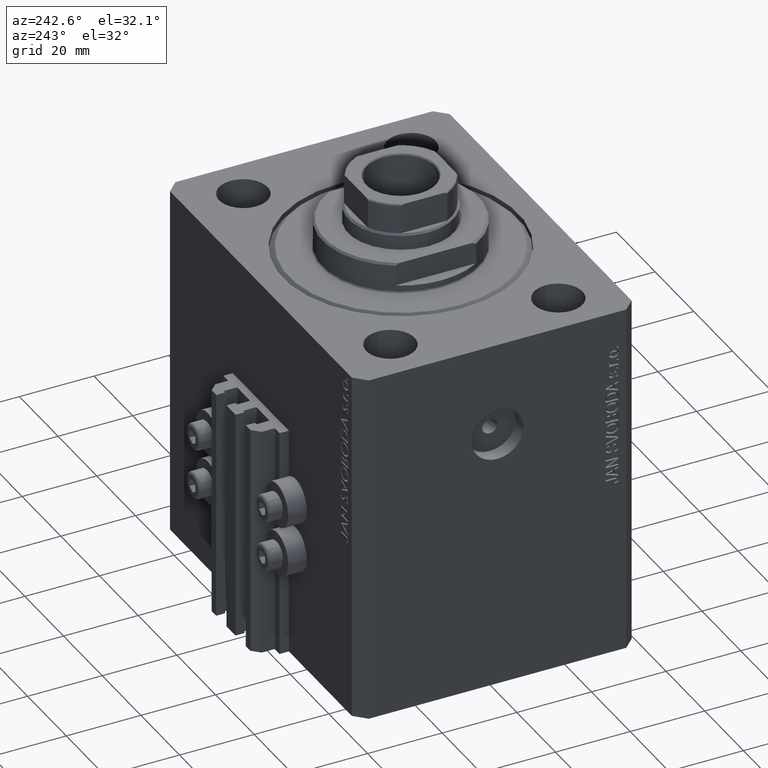
[diagram: clean part render]
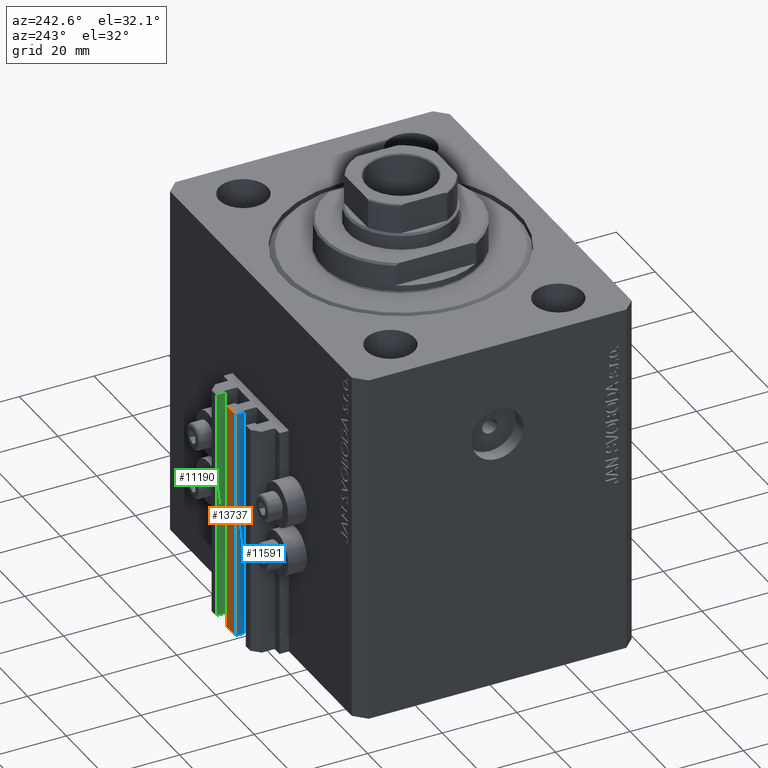
[diagram: same view with three faces highlighted in distinct colors, each labeled with its STEP entity id]
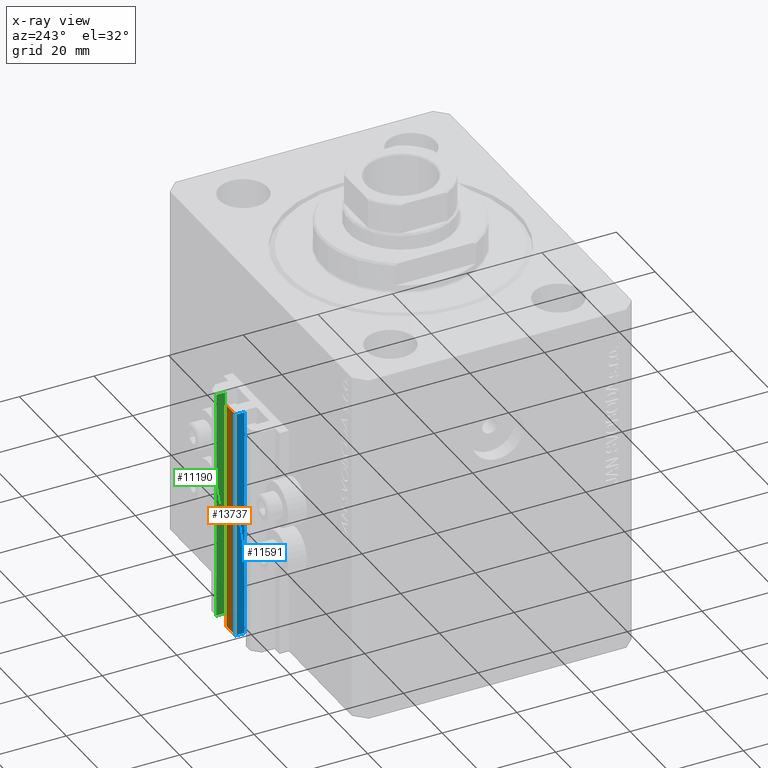
[diagram: x-ray of the same camera — body ghosted, the three highlighted faces saturated]
A machine part, auxiliary view with three faces highlighted in distinct colors.
The next image is the same camera in x-ray (body ghosted, the three faces saturated) — at least one of them is partly hidden behind the body in this view.
Their STEP definitions:

[orange] entity #13737 — the highlighted planar face has unit normal (0, -1, 0).
#121 = VECTOR ( 'NONE', #41443, 1000.000000000000000 ) ;
#492 = CARTESIAN_POINT ( 'NONE',  ( 2.349999999999999645, 45.50000000000000711, -95.00000000000000000 ) ) ;
#788 = VERTEX_POINT ( 'NONE', #42410 ) ;
#1627 = DIRECTION ( 'NONE',  ( 1.000000000000000000, 0.000000000000000000, 0.000000000000000000 ) ) ;
#2360 = FACE_OUTER_BOUND ( 'NONE', #14128, .T. ) ;
#3077 = CARTESIAN_POINT ( 'NONE',  ( -2.350000000000003642, 45.50000000000000711, -95.00000000000000000 ) ) ;
#4330 = VECTOR ( 'NONE', #27275, 1000.000000000000000 ) ;
#5211 = VERTEX_POINT ( 'NONE', #31673 ) ;
#6815 = ORIENTED_EDGE ( 'NONE', *, *, #15473, .T. ) ;
#10040 = VERTEX_POINT ( 'NONE', #10659 ) ;
#10659 = CARTESIAN_POINT ( 'NONE',  ( -2.350000000000003642, 45.50000000000000711, -95.00000000000000000 ) ) ;
#12258 = LINE ( 'NONE', #26834, #121 ) ;
#12591 = EDGE_CURVE ( 'NONE', #10040, #20993, #23651, .T. ) ;
#13599 = CARTESIAN_POINT ( 'NONE',  ( -2.350000000000003642, 45.50000000000000711, -33.00000000000000000 ) ) ;
#13737 = ADVANCED_FACE ( 'NONE', ( #2360 ), #35385, .F. ) ;
#14128 = EDGE_LOOP ( 'NONE', ( #32636, #20941, #33839, #6815 ) ) ;
#15473 = EDGE_CURVE ( 'NONE', #10040, #788, #19407, .T. ) ;
#17682 = DIRECTION ( 'NONE',  ( 0.000000000000000000, -0.000000000000000000, -1.000000000000000000 ) ) ;
#19407 = LINE ( 'NONE', #19626, #4330 ) ;
#19626 = CARTESIAN_POINT ( 'NONE',  ( -2.350000000000003642, 45.50000000000000711, -95.00000000000000000 ) ) ;
#20524 = LINE ( 'NONE', #13599, #39050 ) ;
#20941 = ORIENTED_EDGE ( 'NONE', *, *, #35775, .F. ) ;
#20993 = VERTEX_POINT ( 'NONE', #492 ) ;
#21433 = VECTOR ( 'NONE', #45205, 1000.000000000000000 ) ;
#23651 = LINE ( 'NONE', #30367, #21433 ) ;
#26834 = CARTESIAN_POINT ( 'NONE',  ( 2.349999999999999645, 45.50000000000000711, -95.00000000000000000 ) ) ;
#27275 = DIRECTION ( 'NONE',  ( 0.000000000000000000, 0.000000000000000000, 1.000000000000000000 ) ) ;
#28200 = DIRECTION ( 'NONE',  ( 0.000000000000000000, -1.000000000000000000, 0.000000000000000000 ) ) ;
#30367 = CARTESIAN_POINT ( 'NONE',  ( -2.350000000000003642, 45.50000000000000711, -95.00000000000000000 ) ) ;
#31673 = CARTESIAN_POINT ( 'NONE',  ( 2.349999999999999645, 45.50000000000000711, -33.00000000000000000 ) ) ;
#32636 = ORIENTED_EDGE ( 'NONE', *, *, #33977, .T. ) ;
#33839 = ORIENTED_EDGE ( 'NONE', *, *, #12591, .F. ) ;
#33977 = EDGE_CURVE ( 'NONE', #788, #5211, #20524, .T. ) ;
#35385 = PLANE ( 'NONE',  #40221 ) ;
#35775 = EDGE_CURVE ( 'NONE', #20993, #5211, #12258, .T. ) ;
#39050 = VECTOR ( 'NONE', #1627, 1000.000000000000000 ) ;
#40221 = AXIS2_PLACEMENT_3D ( 'NONE', #3077, #28200, #17682 ) ;
#41443 = DIRECTION ( 'NONE',  ( 0.000000000000000000, 0.000000000000000000, 1.000000000000000000 ) ) ;
#42410 = CARTESIAN_POINT ( 'NONE',  ( -2.350000000000003642, 45.50000000000000711, -33.00000000000000000 ) ) ;
#45205 = DIRECTION ( 'NONE',  ( 1.000000000000000000, 0.000000000000000000, 0.000000000000000000 ) ) ;

[blue] entity #11591 — the highlighted planar face has unit normal (-1, -0, 0).
#788 = VERTEX_POINT ( 'NONE', #42410 ) ;
#2362 = CARTESIAN_POINT ( 'NONE',  ( -2.350000000000003642, 45.50000000000000711, -33.00000000000000000 ) ) ;
#4330 = VECTOR ( 'NONE', #27275, 1000.000000000000000 ) ;
#4855 = ORIENTED_EDGE ( 'NONE', *, *, #4920, .F. ) ;
#4920 = EDGE_CURVE ( 'NONE', #788, #45655, #38261, .T. ) ;
#6316 = CARTESIAN_POINT ( 'NONE',  ( -2.350000000000003197, 43.10000000000000853, -95.00000000000000000 ) ) ;
#10040 = VERTEX_POINT ( 'NONE', #10659 ) ;
#10509 = ORIENTED_EDGE ( 'NONE', *, *, #43942, .T. ) ;
#10630 = DIRECTION ( 'NONE',  ( 0.000000000000000000, 0.000000000000000000, 1.000000000000000000 ) ) ;
#10659 = CARTESIAN_POINT ( 'NONE',  ( -2.350000000000003642, 45.50000000000000711, -95.00000000000000000 ) ) ;
#11334 = DIRECTION ( 'NONE',  ( 1.807003620809174632E-16, -1.000000000000000000, 0.000000000000000000 ) ) ;
#11464 = AXIS2_PLACEMENT_3D ( 'NONE', #46093, #46318, #30770 ) ;
#11577 = LINE ( 'NONE', #44116, #12887 ) ;
#11591 = ADVANCED_FACE ( 'NONE', ( #23353 ), #24062, .T. ) ;
#12414 = CARTESIAN_POINT ( 'NONE',  ( -2.350000000000003197, 43.10000000000000853, -33.00000000000000000 ) ) ;
#12887 = VECTOR ( 'NONE', #11334, 1000.000000000000000 ) ;
#15036 = VERTEX_POINT ( 'NONE', #20677 ) ;
#15473 = EDGE_CURVE ( 'NONE', #10040, #788, #19407, .T. ) ;
#16164 = VECTOR ( 'NONE', #16717, 1000.000000000000000 ) ;
#16717 = DIRECTION ( 'NONE',  ( 1.807003620809174632E-16, -1.000000000000000000, 0.000000000000000000 ) ) ;
#17961 = VECTOR ( 'NONE', #10630, 1000.000000000000000 ) ;
#19407 = LINE ( 'NONE', #19626, #4330 ) ;
#19626 = CARTESIAN_POINT ( 'NONE',  ( -2.350000000000003642, 45.50000000000000711, -95.00000000000000000 ) ) ;
#20387 = ORIENTED_EDGE ( 'NONE', *, *, #15473, .F. ) ;
#20677 = CARTESIAN_POINT ( 'NONE',  ( -2.350000000000003197, 43.10000000000000853, -95.00000000000000000 ) ) ;
#23353 = FACE_OUTER_BOUND ( 'NONE', #43267, .T. ) ;
#24062 = PLANE ( 'NONE',  #11464 ) ;
#24461 = EDGE_CURVE ( 'NONE', #10040, #15036, #11577, .T. ) ;
#27275 = DIRECTION ( 'NONE',  ( 0.000000000000000000, 0.000000000000000000, 1.000000000000000000 ) ) ;
#30770 = DIRECTION ( 'NONE',  ( 1.807003620809174632E-16, -1.000000000000000000, 0.000000000000000000 ) ) ;
#37050 = ORIENTED_EDGE ( 'NONE', *, *, #24461, .T. ) ;
#38261 = LINE ( 'NONE', #2362, #16164 ) ;
#42410 = CARTESIAN_POINT ( 'NONE',  ( -2.350000000000003642, 45.50000000000000711, -33.00000000000000000 ) ) ;
#43173 = LINE ( 'NONE', #6316, #17961 ) ;
#43267 = EDGE_LOOP ( 'NONE', ( #4855, #20387, #37050, #10509 ) ) ;
#43942 = EDGE_CURVE ( 'NONE', #15036, #45655, #43173, .T. ) ;
#44116 = CARTESIAN_POINT ( 'NONE',  ( -2.350000000000003642, 45.50000000000000711, -95.00000000000000000 ) ) ;
#45655 = VERTEX_POINT ( 'NONE', #12414 ) ;
#46093 = CARTESIAN_POINT ( 'NONE',  ( -2.350000000000003642, 45.50000000000000711, -95.00000000000000000 ) ) ;
#46318 = DIRECTION ( 'NONE',  ( -1.000000000000000000, -1.807003620809174632E-16, 0.000000000000000000 ) ) ;

[green] entity #11190 — the highlighted planar face has unit normal (-1, 0, 0).
#1012 = DIRECTION ( 'NONE',  ( 0.000000000000000000, -1.000000000000000000, 0.000000000000000000 ) ) ;
#1490 = AXIS2_PLACEMENT_3D ( 'NONE', #39785, #3426, #17538 ) ;
#2302 = ORIENTED_EDGE ( 'NONE', *, *, #23494, .T. ) ;
#2938 = FACE_OUTER_BOUND ( 'NONE', #12404, .T. ) ;
#3029 = VECTOR ( 'NONE', #3168, 1000.000000000000000 ) ;
#3168 = DIRECTION ( 'NONE',  ( 0.000000000000000000, 0.000000000000000000, 1.000000000000000000 ) ) ;
#3426 = DIRECTION ( 'NONE',  ( -1.000000000000000000, 0.000000000000000000, 0.000000000000000000 ) ) ;
#5110 = CARTESIAN_POINT ( 'NONE',  ( 7.649999999999998579, 45.50000000000002842, -33.00000000000000000 ) ) ;
#5903 = LINE ( 'NONE', #46837, #21954 ) ;
#6116 = LINE ( 'NONE', #38184, #14627 ) ;
#6992 = ORIENTED_EDGE ( 'NONE', *, *, #25391, .F. ) ;
#7010 = LINE ( 'NONE', #42646, #3029 ) ;
#10610 = PLANE ( 'NONE',  #1490 ) ;
#11190 = ADVANCED_FACE ( 'NONE', ( #2938 ), #10610, .T. ) ;
#12404 = EDGE_LOOP ( 'NONE', ( #39509, #6992, #2302, #43135 ) ) ;
#14627 = VECTOR ( 'NONE', #28120, 1000.000000000000000 ) ;
#17538 = DIRECTION ( 'NONE',  ( 0.000000000000000000, 0.000000000000000000, 1.000000000000000000 ) ) ;
#20353 = EDGE_CURVE ( 'NONE', #35944, #35779, #5903, .T. ) ;
#21465 = DIRECTION ( 'NONE',  ( 0.000000000000000000, 0.000000000000000000, 1.000000000000000000 ) ) ;
#21954 = VECTOR ( 'NONE', #21465, 1000.000000000000000 ) ;
#23494 = EDGE_CURVE ( 'NONE', #39305, #35944, #44810, .T. ) ;
#25391 = EDGE_CURVE ( 'NONE', #39305, #46948, #7010, .T. ) ;
#27238 = CARTESIAN_POINT ( 'NONE',  ( 7.649999999999998579, 43.10000000000002984, -95.00000000000000000 ) ) ;
#28120 = DIRECTION ( 'NONE',  ( 0.000000000000000000, -1.000000000000000000, 0.000000000000000000 ) ) ;
#30437 = CARTESIAN_POINT ( 'NONE',  ( 7.649999999999998579, 45.50000000000002842, -95.00000000000000000 ) ) ;
#30666 = CARTESIAN_POINT ( 'NONE',  ( 7.649999999999998579, 43.10000000000002984, -33.00000000000000000 ) ) ;
#34122 = EDGE_CURVE ( 'NONE', #46948, #35779, #6116, .T. ) ;
#35779 = VERTEX_POINT ( 'NONE', #30666 ) ;
#35944 = VERTEX_POINT ( 'NONE', #27238 ) ;
#38184 = CARTESIAN_POINT ( 'NONE',  ( 7.649999999999998579, 45.50000000000002842, -33.00000000000000000 ) ) ;
#39305 = VERTEX_POINT ( 'NONE', #39790 ) ;
#39509 = ORIENTED_EDGE ( 'NONE', *, *, #34122, .F. ) ;
#39785 = CARTESIAN_POINT ( 'NONE',  ( 7.649999999999998579, 45.50000000000002842, -95.00000000000000000 ) ) ;
#39790 = CARTESIAN_POINT ( 'NONE',  ( 7.649999999999998579, 45.50000000000002842, -95.00000000000000000 ) ) ;
#40387 = VECTOR ( 'NONE', #1012, 1000.000000000000000 ) ;
#42646 = CARTESIAN_POINT ( 'NONE',  ( 7.649999999999998579, 45.50000000000002842, -95.00000000000000000 ) ) ;
#43135 = ORIENTED_EDGE ( 'NONE', *, *, #20353, .T. ) ;
#44810 = LINE ( 'NONE', #30437, #40387 ) ;
#46837 = CARTESIAN_POINT ( 'NONE',  ( 7.649999999999998579, 43.10000000000002984, -95.00000000000000000 ) ) ;
#46948 = VERTEX_POINT ( 'NONE', #5110 ) ;